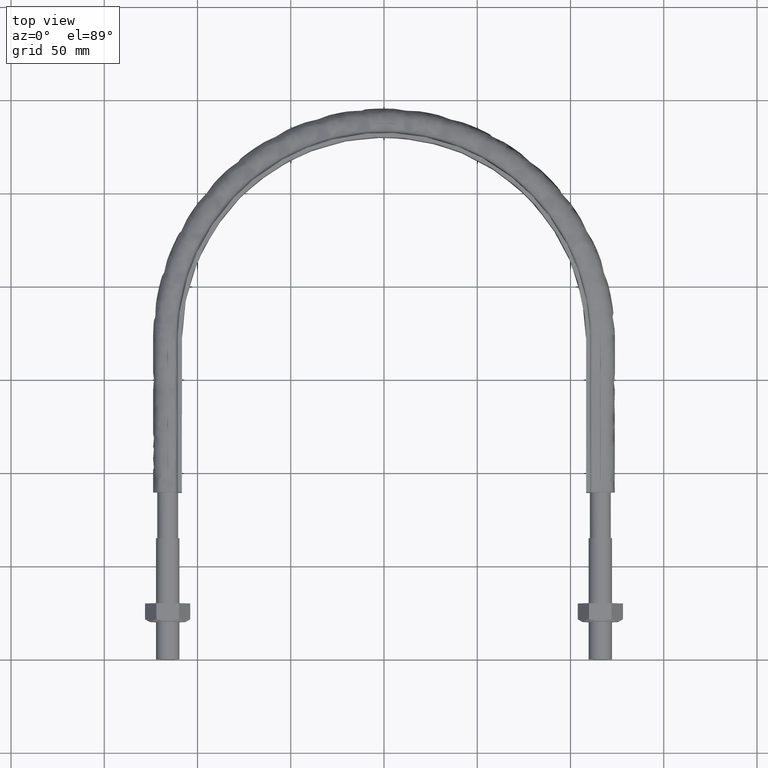
[diagram: clean part render]
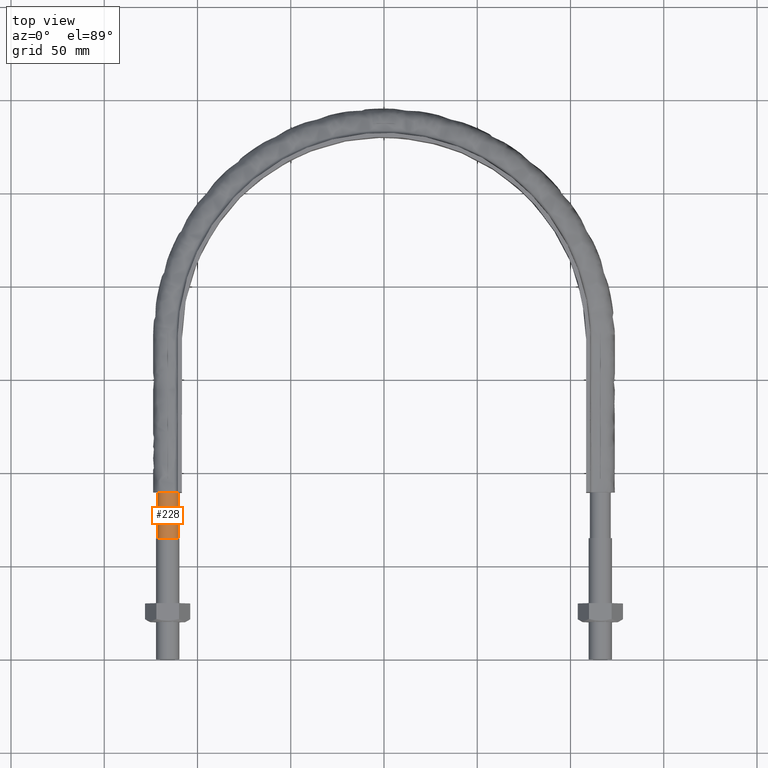
[diagram: same view with one face highlighted and labeled with its STEP entity id]
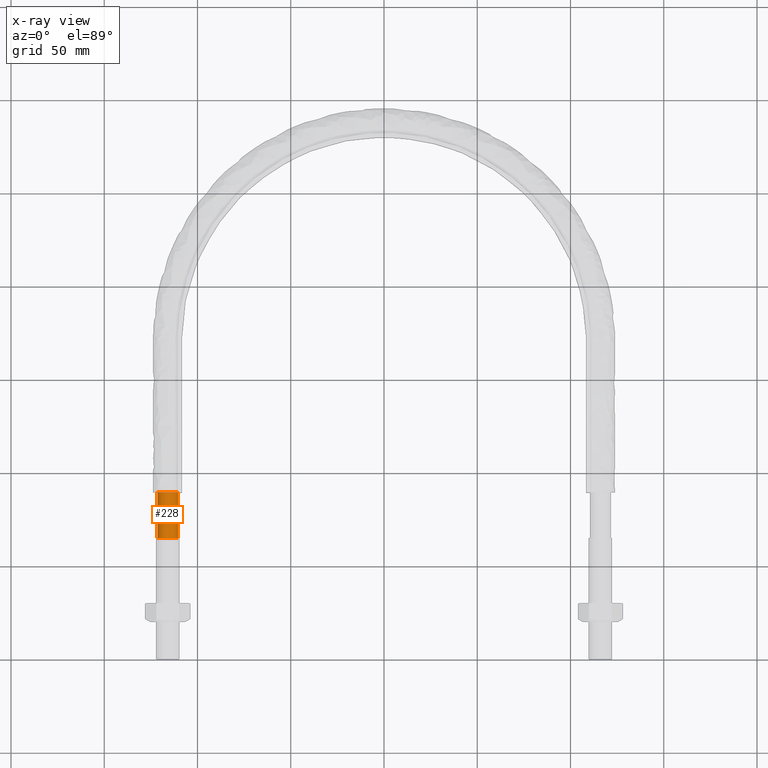
[diagram: x-ray of the same camera — body ghosted, the highlighted face saturated]
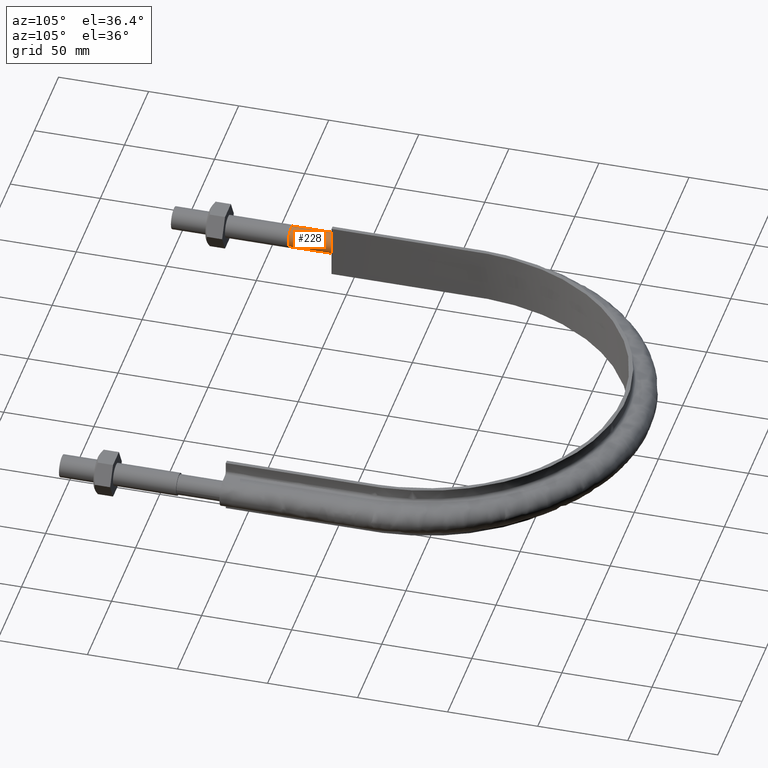
[diagram: same view with one face highlighted and labeled with its STEP entity id]
A machine part, top view. The second image highlights one B-rep face of the part: STEP entity #228.
The next image is the same camera in x-ray: the body ghosted, the highlighted face saturated — about 0% of this face is hidden behind the body in this view.
A second angle (auxiliary view) of the same face is appended — the face is thin or edge-on in the first view.
In plain terms, the highlighted cylindrical surface (bore or boss wall) has radius 5.6 mm, axis along (0, 1, -0).
Its self-contained STEP definition (entity closure, byte-faithful):
#228 = ADVANCED_FACE( '', ( #283, #284 ), #285, .T. );
#283 = FACE_OUTER_BOUND( '', #1284, .T. );
#284 = FACE_OUTER_BOUND( '', #1285, .T. );
#285 = CYLINDRICAL_SURFACE( '', #1286, 5.59999999999999 );
#1284 = EDGE_LOOP( '', ( #1449 ) );
#1285 = EDGE_LOOP( '', ( #1450, #1451, #1452, #1453, #1454, #1455, #1456, #1457 ) );
#1286 = AXIS2_PLACEMENT_3D( '', #1458, #1459, #1460 );
#1449 = ORIENTED_EDGE( '', *, *, #1684, .F. );
#1450 = ORIENTED_EDGE( '', *, *, #1683, .F. );
#1451 = ORIENTED_EDGE( '', *, *, #1682, .F. );
#1452 = ORIENTED_EDGE( '', *, *, #1681, .F. );
#1453 = ORIENTED_EDGE( '', *, *, #1680, .F. );
#1454 = ORIENTED_EDGE( '', *, *, #1679, .F. );
#1455 = ORIENTED_EDGE( '', *, *, #1678, .F. );
#1456 = ORIENTED_EDGE( '', *, *, #1677, .F. );
#1457 = ORIENTED_EDGE( '', *, *, #1676, .F. );
#1458 = CARTESIAN_POINT( '', ( -116.000000000000, 89.5000000000000, -2.74005671667757E-014 ) );
#1459 = DIRECTION( '', ( 2.44921270764475E-016, 1.00000000000000, -3.06151588455594E-016 ) );
#1460 = DIRECTION( '', ( 1.00000000000000, -2.44921270764475E-016, -1.50944387002457E-047 ) );
#1676 = EDGE_CURVE( '', #1777, #1778, #1779, .T. );
#1677 = EDGE_CURVE( '', #1778, #1780, #1781, .T. );
#1678 = EDGE_CURVE( '', #1780, #1782, #1783, .T. );
#1679 = EDGE_CURVE( '', #1782, #1784, #1785, .T. );
#1680 = EDGE_CURVE( '', #1784, #1786, #1787, .T. );
#1681 = EDGE_CURVE( '', #1786, #1788, #1789, .T. );
#1682 = EDGE_CURVE( '', #1788, #1790, #1791, .T. );
#1683 = EDGE_CURVE( '', #1790, #1777, #1792, .T. );
#1684 = EDGE_CURVE( '', #1793, #1793, #1794, .F. );
#1777 = VERTEX_POINT( '', #2099 );
#1778 = VERTEX_POINT( '', #2100 );
#1779 = B_SPLINE_CURVE_WITH_KNOTS( '', 3, ( #2101, #2102, #2103, #2104 ), .UNSPECIFIED., .F., .F., ( 4, 4 ), ( 0.000000000000000, 1.00000000000000 ), .UNSPECIFIED. );
#1780 = VERTEX_POINT( '', #2105 );
#1781 = B_SPLINE_CURVE_WITH_KNOTS( '', 3, ( #2106, #2107, #2108, #2109 ), .UNSPECIFIED., .F., .F., ( 4, 4 ), ( 0.000000000000000, 1.00000000000000 ), .UNSPECIFIED. );
#1782 = VERTEX_POINT( '', #2110 );
#1783 = B_SPLINE_CURVE_WITH_KNOTS( '', 3, ( #2111, #2112, #2113, #2114 ), .UNSPECIFIED., .F., .F., ( 4, 4 ), ( 0.000000000000000, 1.00000000000000 ), .UNSPECIFIED. );
#1784 = VERTEX_POINT( '', #2115 );
#1785 = B_SPLINE_CURVE_WITH_KNOTS( '', 3, ( #2116, #2117, #2118, #2119 ), .UNSPECIFIED., .F., .F., ( 4, 4 ), ( 0.000000000000000, 1.00000000000000 ), .UNSPECIFIED. );
#1786 = VERTEX_POINT( '', #2120 );
#1787 = B_SPLINE_CURVE_WITH_KNOTS( '', 3, ( #2121, #2122, #2123, #2124 ), .UNSPECIFIED., .F., .F., ( 4, 4 ), ( 0.000000000000000, 1.00000000000000 ), .UNSPECIFIED. );
#1788 = VERTEX_POINT( '', #2125 );
#1789 = B_SPLINE_CURVE_WITH_KNOTS( '', 3, ( #2126, #2127, #2128, #2129 ), .UNSPECIFIED., .F., .F., ( 4, 4 ), ( 0.000000000000000, 1.00000000000000 ), .UNSPECIFIED. );
#1790 = VERTEX_POINT( '', #2130 );
#1791 = B_SPLINE_CURVE_WITH_KNOTS( '', 3, ( #2131, #2132, #2133, #2134 ), .UNSPECIFIED., .F., .F., ( 4, 4 ), ( 0.000000000000000, 1.00000000000000 ), .UNSPECIFIED. );
#1792 = B_SPLINE_CURVE_WITH_KNOTS( '', 3, ( #2135, #2136, #2137, #2138 ), .UNSPECIFIED., .F., .F., ( 4, 4 ), ( 0.000000000000000, 1.00000000000000 ), .UNSPECIFIED. );
#1793 = VERTEX_POINT( '', #2139 );
#1794 = CIRCLE( '', #2140, 5.59999999999999 );
#2099 = CARTESIAN_POINT( '', ( -110.400000000000, 89.5000000000002, 6.88494635144106E-014 ) );
#2100 = CARTESIAN_POINT( '', ( -112.040202025355, 89.5000000000000, -3.95979797464440 ) );
#2101 = CARTESIAN_POINT( '', ( -110.400000000000, 89.5000000000004, -1.20586049826010E-011 ) );
#2102 = CARTESIAN_POINT( '', ( -110.400000000002, 89.5000000000004, -1.46274169981365 ) );
#2103 = CARTESIAN_POINT( '', ( -111.005887450314, 89.5000000000004, -2.92548339961616 ) );
#2104 = CARTESIAN_POINT( '', ( -112.040202025379, 89.5000000000004, -3.95979797466827 ) );
#2105 = CARTESIAN_POINT( '', ( -116.000000000000, 89.5000000000000, -5.60000000000002 ) );
#2106 = CARTESIAN_POINT( '', ( -112.040202025379, 89.5000000000004, -3.95979797466816 ) );
#2107 = CARTESIAN_POINT( '', ( -113.074516600428, 89.5000000000004, -4.99411254970451 ) );
#2108 = CARTESIAN_POINT( '', ( -114.537258300214, 89.5000000000004, -5.59999999999987 ) );
#2109 = CARTESIAN_POINT( '', ( -116.000000000000, 89.5000000000004, -5.59999999999999 ) );
#2110 = CARTESIAN_POINT( '', ( -119.959797974650, 89.5000000000000, -3.95979797463928 ) );
#2111 = CARTESIAN_POINT( '', ( -116.000000000002, 89.5000000000004, -5.60000000000008 ) );
#2112 = CARTESIAN_POINT( '', ( -117.462741699800, 89.5000000000004, -5.59999999999958 ) );
#2113 = CARTESIAN_POINT( '', ( -118.925483399599, 89.5000000000004, -4.99411254969341 ) );
#2114 = CARTESIAN_POINT( '', ( -119.959797974650, 89.5000000000004, -3.95979797463924 ) );
#2115 = CARTESIAN_POINT( '', ( -121.600000000000, 89.5000000000000, 1.22458835622041E-014 ) );
#2116 = CARTESIAN_POINT( '', ( -119.959797974655, 89.5000000000004, -3.95979797463476 ) );
#2117 = CARTESIAN_POINT( '', ( -120.994112549703, 89.5000000000004, -2.92548339958149 ) );
#2118 = CARTESIAN_POINT( '', ( -121.600000000005, 89.5000000000004, -1.46274169978230 ) );
#2119 = CARTESIAN_POINT( '', ( -121.600000000000, 89.5000000000004, 1.81417217979973E-011 ) );
#2120 = CARTESIAN_POINT( '', ( -119.959797974644, 89.5000000000000, 3.95979797464519 ) );
#2121 = CARTESIAN_POINT( '', ( -121.600000000000, 89.5000000000004, 1.84197112350230E-011 ) );
#2122 = CARTESIAN_POINT( '', ( -121.599999999995, 89.5000000000004, 1.46274169980943 ) );
#2123 = CARTESIAN_POINT( '', ( -120.994112549691, 89.5000000000004, 2.92548339959869 ) );
#2124 = CARTESIAN_POINT( '', ( -119.959797974644, 89.5000000000004, 3.95979797464521 ) );
#2125 = CARTESIAN_POINT( '', ( -116.000000000000, 89.5000000000000, 5.59999999999997 ) );
#2126 = CARTESIAN_POINT( '', ( -119.959797974644, 89.5000000000004, 3.95979797464523 ) );
#2127 = CARTESIAN_POINT( '', ( -118.925483399593, 89.5000000000004, 4.99411254969566 ) );
#2128 = CARTESIAN_POINT( '', ( -117.462741699797, 89.5000000000004, 5.60000000000002 ) );
#2129 = CARTESIAN_POINT( '', ( -116.000000000000, 89.5000000000004, 5.59999999999999 ) );
#2130 = CARTESIAN_POINT( '', ( -112.040202025356, 89.5000000000000, 3.95979797464564 ) );
#2131 = CARTESIAN_POINT( '', ( -116.000000000000, 89.5000000000004, 5.59999999999998 ) );
#2132 = CARTESIAN_POINT( '', ( -114.537258300204, 89.5000000000004, 5.60000000000007 ) );
#2133 = CARTESIAN_POINT( '', ( -113.074516600407, 89.5000000000004, 4.99411254969579 ) );
#2134 = CARTESIAN_POINT( '', ( -112.040202025356, 89.5000000000004, 3.95979797464565 ) );
#2135 = CARTESIAN_POINT( '', ( -112.040202025356, 89.5000000000004, 3.95979797464564 ) );
#2136 = CARTESIAN_POINT( '', ( -111.005887450305, 89.5000000000004, 2.92548339959483 ) );
#2137 = CARTESIAN_POINT( '', ( -110.400000000000, 89.5000000000004, 1.46274169979741 ) );
#2138 = CARTESIAN_POINT( '', ( -110.400000000000, 89.5000000000004, 3.25260651745651E-016 ) );
#2139 = CARTESIAN_POINT( '', ( -121.600000000000, 65.0000000000000, -1.98998532496136E-014 ) );
#2140 = AXIS2_PLACEMENT_3D( '', #2394, #2395, #2396 );
#2394 = CARTESIAN_POINT( '', ( -116.000000000000, 65.0000000000000, -1.98998532496136E-014 ) );
#2395 = DIRECTION( '', ( 1.83690953073357E-016, 1.00000000000000, 0.000000000000000 ) );
#2396 = DIRECTION( '', ( -1.00000000000000, 1.83690953073357E-016, 0.000000000000000 ) );